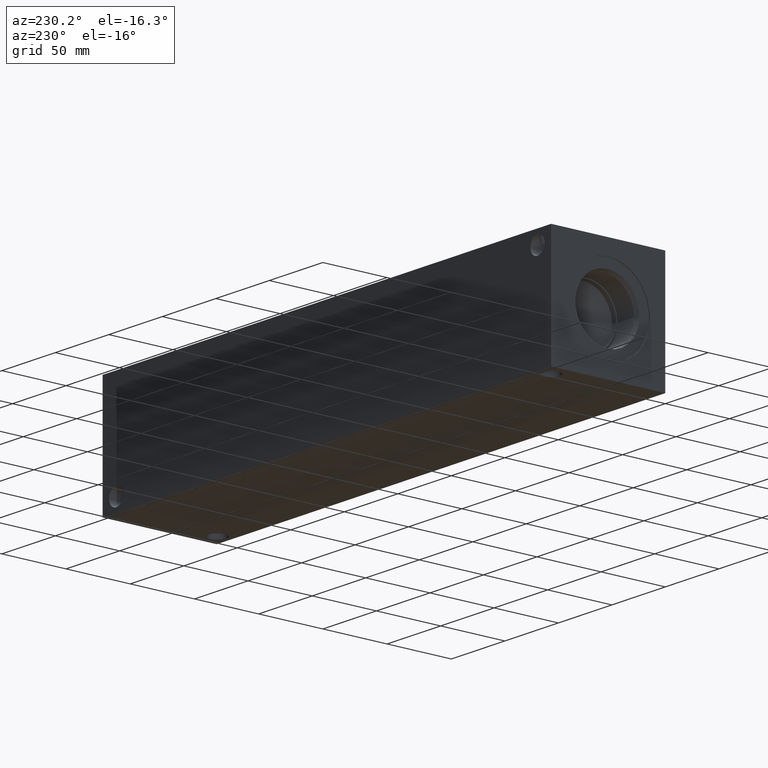
[diagram: clean part render]
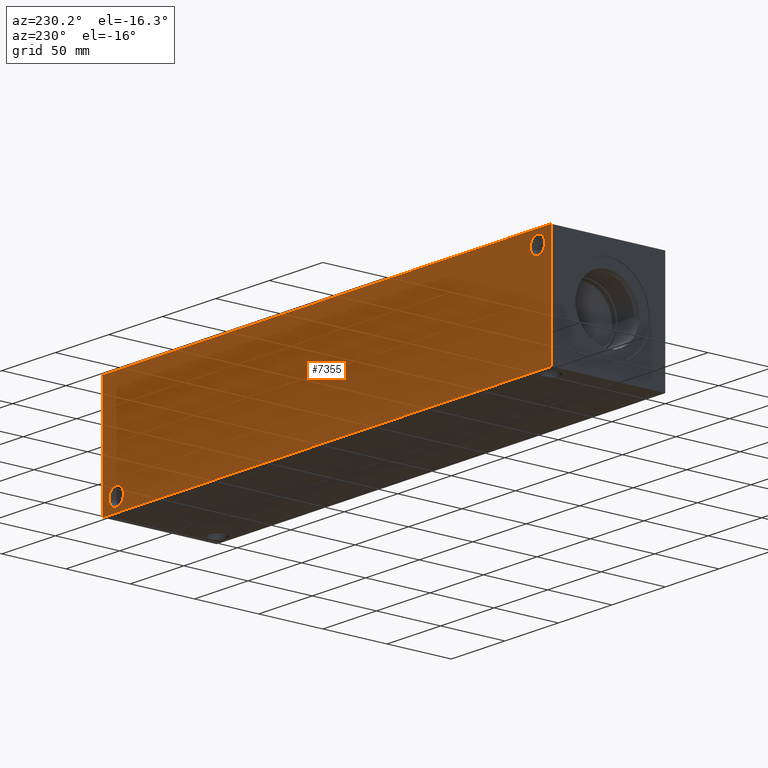
[diagram: same view with one face highlighted and labeled with its STEP entity id]
A machine part, auxiliary view. The second image highlights one B-rep face of the part: STEP entity #7355.
In plain terms, the highlighted planar face has unit normal (0, 1, 0).
Its self-contained STEP definition (entity closure, byte-faithful):
#96=CIRCLE('',#7599,6.7437);
#99=CIRCLE('',#7609,6.7437);
#247=FACE_BOUND('',#1338,.T.);
#248=FACE_BOUND('',#1339,.T.);
#912=FACE_OUTER_BOUND('',#1337,.T.);
#1337=EDGE_LOOP('',(#6438,#6439,#6440,#6441));
#1338=EDGE_LOOP('',(#6442));
#1339=EDGE_LOOP('',(#6443));
#1600=LINE('',#11296,#2298);
#2041=LINE('',#12596,#2739);
#2042=LINE('',#12599,#2740);
#2043=LINE('',#12600,#2741);
#2298=VECTOR('',#8166,10.);
#2739=VECTOR('',#9285,10.);
#2740=VECTOR('',#9288,10.);
#2741=VECTOR('',#9289,10.);
#3029=VERTEX_POINT('',#11293);
#3030=VERTEX_POINT('',#11295);
#3309=VERTEX_POINT('',#12242);
#3314=VERTEX_POINT('',#12260);
#3421=VERTEX_POINT('',#12592);
#3423=VERTEX_POINT('',#12598);
#3850=EDGE_CURVE('',#3029,#3030,#1600,.T.);
#4265=EDGE_CURVE('',#3309,#3309,#96,.T.);
#4275=EDGE_CURVE('',#3314,#3314,#99,.T.);
#4433=EDGE_CURVE('',#3421,#3030,#2041,.T.);
#4434=EDGE_CURVE('',#3423,#3421,#2042,.T.);
#4435=EDGE_CURVE('',#3423,#3029,#2043,.T.);
#6438=ORIENTED_EDGE('',*,*,#4434,.T.);
#6439=ORIENTED_EDGE('',*,*,#4433,.T.);
#6440=ORIENTED_EDGE('',*,*,#3850,.F.);
#6441=ORIENTED_EDGE('',*,*,#4435,.F.);
#6442=ORIENTED_EDGE('',*,*,#4265,.T.);
#6443=ORIENTED_EDGE('',*,*,#4275,.T.);
#6685=PLANE('',#7778);
#7355=ADVANCED_FACE('',(#912,#247,#248),#6685,.T.);
#7599=AXIS2_PLACEMENT_3D('',#12244,#8867,#8868);
#7609=AXIS2_PLACEMENT_3D('',#12262,#8890,#8891);
#7778=AXIS2_PLACEMENT_3D('',#12597,#9286,#9287);
#8166=DIRECTION('',(-1.,0.,0.));
#8867=DIRECTION('center_axis',(0.,-1.,0.));
#8868=DIRECTION('ref_axis',(1.,0.,0.));
#8890=DIRECTION('center_axis',(0.,-1.,0.));
#8891=DIRECTION('ref_axis',(1.,0.,0.));
#9285=DIRECTION('',(0.,0.,1.));
#9286=DIRECTION('center_axis',(0.,1.,0.));
#9287=DIRECTION('ref_axis',(-1.,0.,0.));
#9288=DIRECTION('',(-1.,0.,0.));
#9289=DIRECTION('',(0.,0.,1.));
#11293=CARTESIAN_POINT('',(419.1,88.9,88.9));
#11295=CARTESIAN_POINT('',(0.,88.9,88.9));
#11296=CARTESIAN_POINT('',(419.1,88.9,88.9));
#12242=CARTESIAN_POINT('',(399.6563,88.9,10.3124));
#12244=CARTESIAN_POINT('Origin',(406.4,88.9,10.3124));
#12260=CARTESIAN_POINT('',(5.9563,88.9,78.5876));
#12262=CARTESIAN_POINT('Origin',(12.7,88.9,78.5876));
#12592=CARTESIAN_POINT('',(0.,88.9,0.));
#12596=CARTESIAN_POINT('',(0.,88.9,0.));
#12597=CARTESIAN_POINT('Origin',(419.1,88.9,0.));
#12598=CARTESIAN_POINT('',(419.1,88.9,0.));
#12599=CARTESIAN_POINT('',(419.1,88.9,0.));
#12600=CARTESIAN_POINT('',(419.1,88.9,0.));